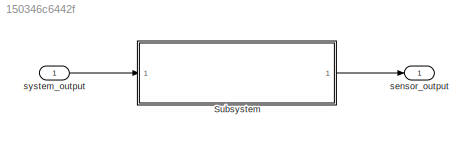
MODEL slx_150346c6442f
KIND model
CONFIG AbsTol = auto
CONFIG EnableMultiTasking = off
CONFIG FixedStep = auto
CONFIG MaxStep = auto
CONFIG MinStep = auto
CONFIG RelTol = 1e-3
CONFIG SampleTimeConstraint = Unconstrained
CONFIG SolverName = VariableStepAuto
CONFIG StartTime = 0.0
CONFIG StopTime = 10.0
BLOCK [SubSystem] Subsystem
  ReferencedSubsystem = sensor_model
BLOCK [Outport] sensor_output
BLOCK [Inport] system_output
LINE Subsystem:1 -> sensor_output:1
LINE system_output:1 -> Subsystem:1
